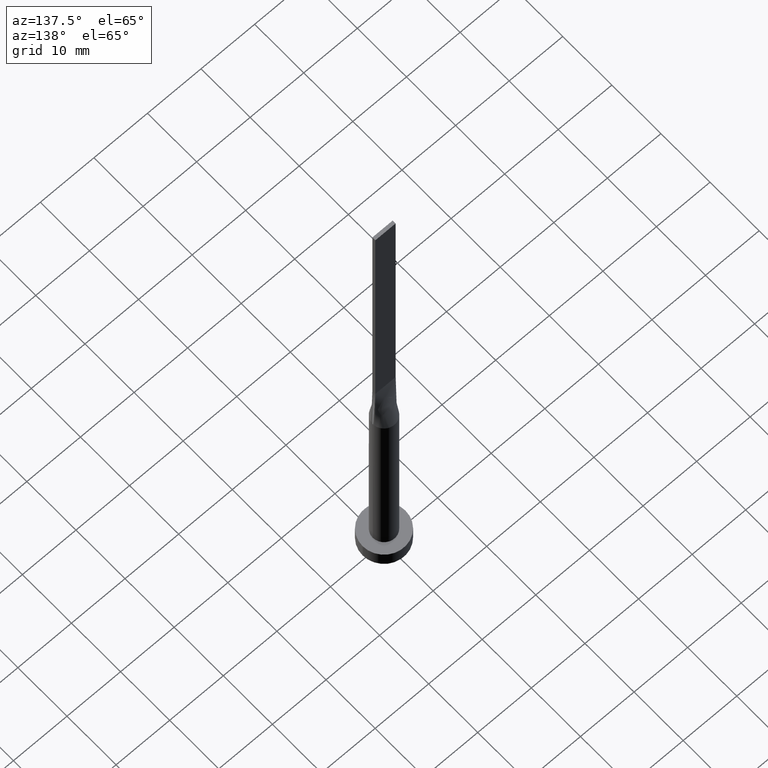
[diagram: clean part render]
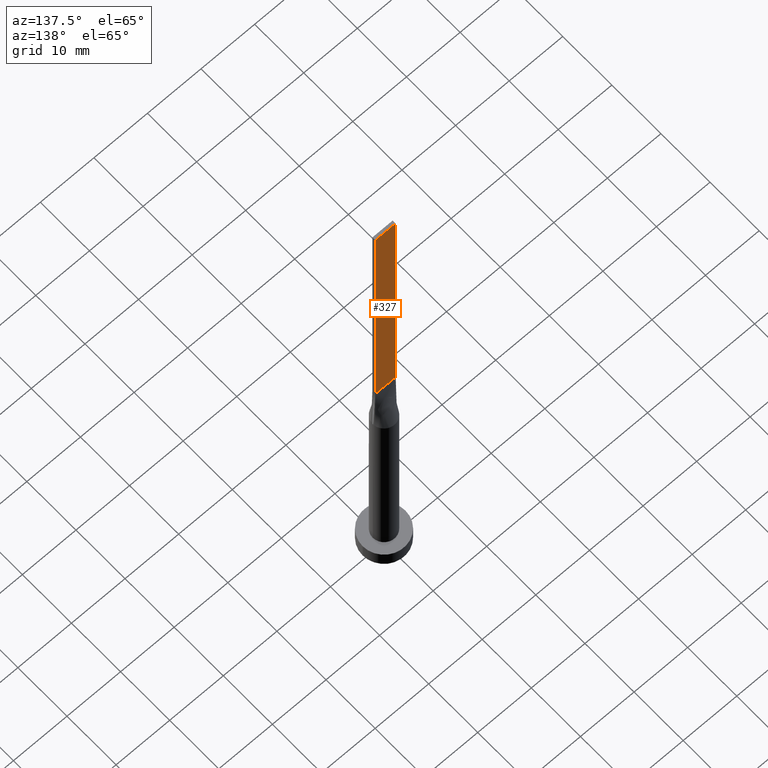
[diagram: same view with one face highlighted and labeled with its STEP entity id]
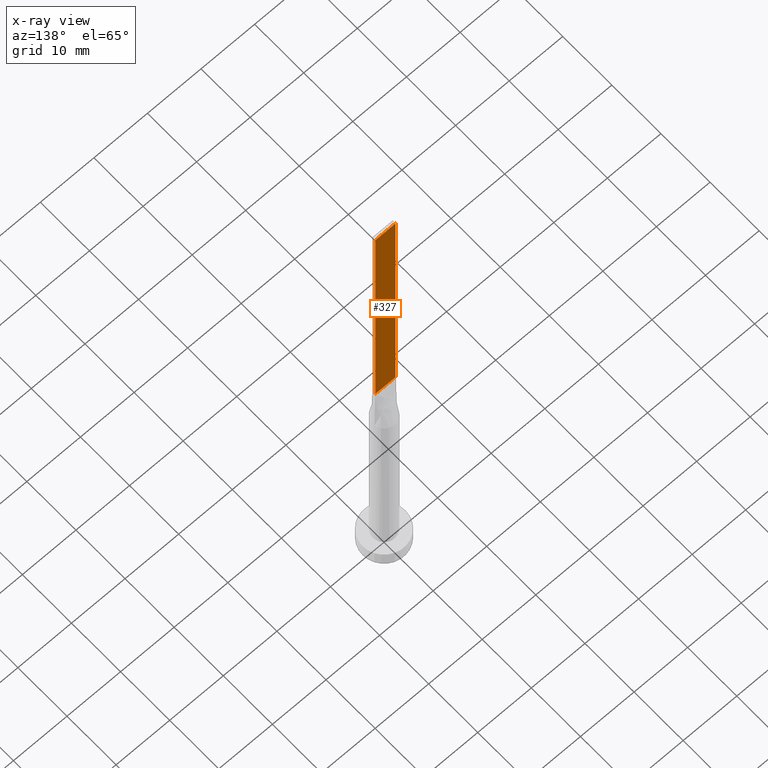
[diagram: x-ray of the same camera — body ghosted, the highlighted face saturated]
A machine part, auxiliary view. The second image highlights one B-rep face of the part: STEP entity #327.
The next image is the same camera in x-ray: the body ghosted, the highlighted face saturated — about 0% of this face is hidden behind the body in this view.
In plain terms, the highlighted planar face has unit normal (0, -1, 0).
Its self-contained STEP definition (entity closure, byte-faithful):
#39 = CARTESIAN_POINT ( 'NONE',  ( -1.899999999999999689, 0.3000000000000002109, 100.0000000000000000 ) ) ;
#64 = CARTESIAN_POINT ( 'NONE',  ( 1.899999999999999689, 0.3000000000000002109, 50.00000000000000000 ) ) ;
#71 = LINE ( 'NONE', #472, #335 ) ;
#89 = DIRECTION ( 'NONE',  ( -1.000000000000000000, -0.000000000000000000, -0.000000000000000000 ) ) ;
#103 = AXIS2_PLACEMENT_3D ( 'NONE', #287, #464, #419 ) ;
#111 = PLANE ( 'NONE',  #103 ) ;
#126 = EDGE_CURVE ( 'NONE', #569, #357, #319, .T. ) ;
#139 = ORIENTED_EDGE ( 'NONE', *, *, #501, .T. ) ;
#198 = CARTESIAN_POINT ( 'NONE',  ( 1.899999999999999689, 0.3000000000000002109, 100.0000000000000000 ) ) ;
#206 = DIRECTION ( 'NONE',  ( -1.000000000000000000, 0.000000000000000000, 0.000000000000000000 ) ) ;
#219 = ORIENTED_EDGE ( 'NONE', *, *, #126, .T. ) ;
#226 = EDGE_LOOP ( 'NONE', ( #219, #439, #447, #139 ) ) ;
#254 = LINE ( 'NONE', #198, #554 ) ;
#262 = VERTEX_POINT ( 'NONE', #268 ) ;
#268 = CARTESIAN_POINT ( 'NONE',  ( 1.899999999999999689, 0.3000000000000002109, 100.0000000000000000 ) ) ;
#287 = CARTESIAN_POINT ( 'NONE',  ( 1.899999999999999689, 0.3000000000000002109, 100.0000000000000000 ) ) ;
#291 = FACE_OUTER_BOUND ( 'NONE', #226, .T. ) ;
#307 = VECTOR ( 'NONE', #89, 1000.000000000000000 ) ;
#310 = VERTEX_POINT ( 'NONE', #39 ) ;
#319 = LINE ( 'NONE', #495, #307 ) ;
#327 = ADVANCED_FACE ( 'NONE', ( #291 ), #111, .F. ) ;
#335 = VECTOR ( 'NONE', #206, 1000.000000000000000 ) ;
#357 = VERTEX_POINT ( 'NONE', #484 ) ;
#419 = DIRECTION ( 'NONE',  ( 0.000000000000000000, -0.000000000000000000, -1.000000000000000000 ) ) ;
#427 = DIRECTION ( 'NONE',  ( -0.000000000000000000, -0.000000000000000000, -1.000000000000000000 ) ) ;
#439 = ORIENTED_EDGE ( 'NONE', *, *, #516, .F. ) ;
#447 = ORIENTED_EDGE ( 'NONE', *, *, #541, .F. ) ;
#464 = DIRECTION ( 'NONE',  ( 0.000000000000000000, -1.000000000000000000, 0.000000000000000000 ) ) ;
#472 = CARTESIAN_POINT ( 'NONE',  ( 1.899999999999999689, 0.3000000000000002109, 100.0000000000000000 ) ) ;
#484 = CARTESIAN_POINT ( 'NONE',  ( -1.899999999999999689, 0.3000000000000002109, 50.00000000000000000 ) ) ;
#495 = CARTESIAN_POINT ( 'NONE',  ( -1.899999999999999689, 0.3000000000000002109, 50.00000000000000000 ) ) ;
#501 = EDGE_CURVE ( 'NONE', #262, #569, #254, .T. ) ;
#511 = CARTESIAN_POINT ( 'NONE',  ( -1.899999999999999689, 0.3000000000000002109, 100.0000000000000000 ) ) ;
#514 = LINE ( 'NONE', #511, #531 ) ;
#516 = EDGE_CURVE ( 'NONE', #310, #357, #514, .T. ) ;
#531 = VECTOR ( 'NONE', #557, 1000.000000000000000 ) ;
#541 = EDGE_CURVE ( 'NONE', #262, #310, #71, .T. ) ;
#554 = VECTOR ( 'NONE', #427, 1000.000000000000000 ) ;
#557 = DIRECTION ( 'NONE',  ( -0.000000000000000000, -0.000000000000000000, -1.000000000000000000 ) ) ;
#569 = VERTEX_POINT ( 'NONE', #64 ) ;